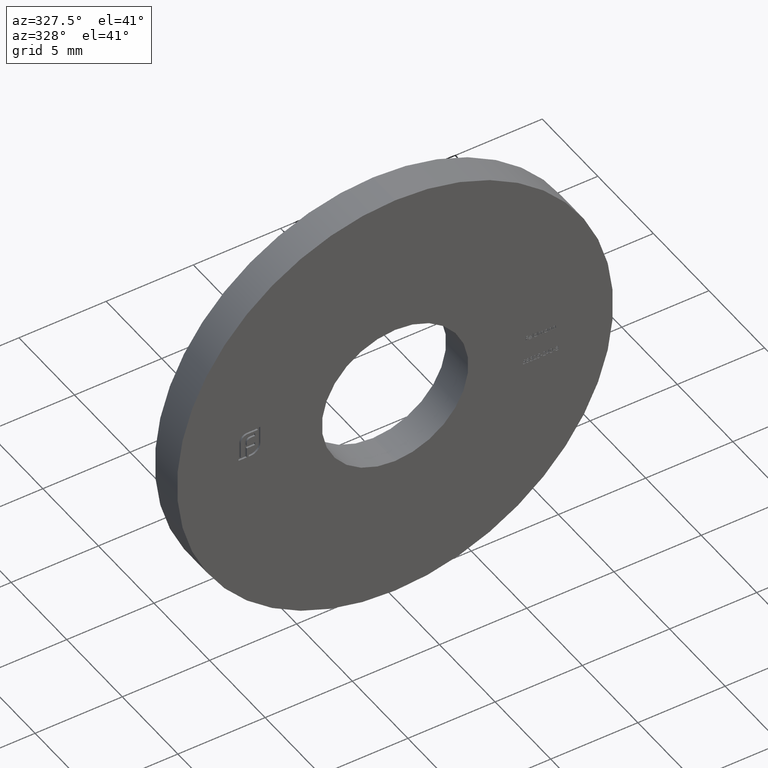
[diagram: clean part render]
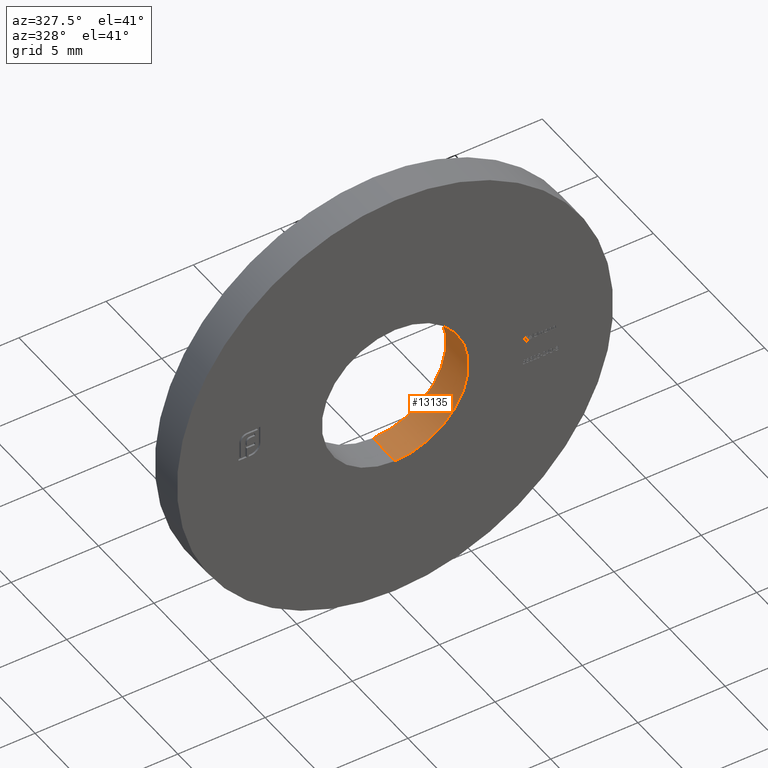
[diagram: same view with one face highlighted and labeled with its STEP entity id]
A machine part, auxiliary view. The second image highlights one B-rep face of the part: STEP entity #13135.
In plain terms, the highlighted cylindrical surface (partial cylindrical patch) has radius 4.2 mm, axis along (-0, -1, -0).
Its self-contained STEP definition (entity closure, byte-faithful):
#54 = CARTESIAN_POINT ( 'NONE',  ( 5.143516556418883914E-16, -1.000000000000000000, 4.200000000000000178 ) ) ;
#488 = ORIENTED_EDGE ( 'NONE', *, *, #15136, .F. ) ;
#856 = LINE ( 'NONE', #11048, #1681 ) ;
#894 = VERTEX_POINT ( 'NONE', #54 ) ;
#967 = DIRECTION ( 'NONE',  ( -0.000000000000000000, -1.000000000000000000, -0.000000000000000000 ) ) ;
#1164 = DIRECTION ( 'NONE',  ( 0.000000000000000000, 1.000000000000000000, 0.000000000000000000 ) ) ;
#1681 = VECTOR ( 'NONE', #2986, 1000.000000000000000 ) ;
#1885 = CARTESIAN_POINT ( 'NONE',  ( 0.000000000000000000, 1.000000000000000000, -4.200000000000000178 ) ) ;
#2986 = DIRECTION ( 'NONE',  ( -0.000000000000000000, -1.000000000000000000, -0.000000000000000000 ) ) ;
#3096 = DIRECTION ( 'NONE',  ( 0.000000000000000000, 1.000000000000000000, 0.000000000000000000 ) ) ;
#4537 = EDGE_LOOP ( 'NONE', ( #488, #17055, #7758, #10371 ) ) ;
#5264 = EDGE_CURVE ( 'NONE', #894, #9280, #9752, .T. ) ;
#5536 = AXIS2_PLACEMENT_3D ( 'NONE', #13392, #1164, #15896 ) ;
#7758 = ORIENTED_EDGE ( 'NONE', *, *, #13928, .T. ) ;
#8333 = CARTESIAN_POINT ( 'NONE',  ( 0.000000000000000000, 1.000000000000000000, -4.200000000000000178 ) ) ;
#9226 = VECTOR ( 'NONE', #10159, 1000.000000000000000 ) ;
#9280 = VERTEX_POINT ( 'NONE', #14849 ) ;
#9676 = CYLINDRICAL_SURFACE ( 'NONE', #16627, 4.200000000000000178 ) ;
#9752 = CIRCLE ( 'NONE', #15743, 4.200000000000000178 ) ;
#9789 = CARTESIAN_POINT ( 'NONE',  ( 0.000000000000000000, -1.000000000000000000, 0.000000000000000000 ) ) ;
#10092 = LINE ( 'NONE', #1885, #9226 ) ;
#10159 = DIRECTION ( 'NONE',  ( -0.000000000000000000, -1.000000000000000000, -0.000000000000000000 ) ) ;
#10331 = DIRECTION ( 'NONE',  ( 0.000000000000000000, 0.000000000000000000, -1.000000000000000000 ) ) ;
#10371 = ORIENTED_EDGE ( 'NONE', *, *, #5264, .F. ) ;
#11048 = CARTESIAN_POINT ( 'NONE',  ( 5.143516556418883914E-16, 1.000000000000000000, 4.200000000000000178 ) ) ;
#11159 = CIRCLE ( 'NONE', #5536, 4.200000000000000178 ) ;
#11625 = CARTESIAN_POINT ( 'NONE',  ( 5.143516556418883914E-16, 1.000000000000000000, 4.200000000000000178 ) ) ;
#12424 = FACE_OUTER_BOUND ( 'NONE', #4537, .T. ) ;
#13135 = ADVANCED_FACE ( 'NONE', ( #12424 ), #9676, .F. ) ;
#13243 = EDGE_CURVE ( 'NONE', #13977, #16012, #11159, .T. ) ;
#13392 = CARTESIAN_POINT ( 'NONE',  ( 0.000000000000000000, 1.000000000000000000, 0.000000000000000000 ) ) ;
#13832 = DIRECTION ( 'NONE',  ( 0.000000000000000000, 0.000000000000000000, 1.000000000000000000 ) ) ;
#13928 = EDGE_CURVE ( 'NONE', #16012, #9280, #10092, .T. ) ;
#13977 = VERTEX_POINT ( 'NONE', #11625 ) ;
#14849 = CARTESIAN_POINT ( 'NONE',  ( 0.000000000000000000, -1.000000000000000000, -4.200000000000000178 ) ) ;
#15136 = EDGE_CURVE ( 'NONE', #13977, #894, #856, .T. ) ;
#15743 = AXIS2_PLACEMENT_3D ( 'NONE', #9789, #3096, #13832 ) ;
#15896 = DIRECTION ( 'NONE',  ( 0.000000000000000000, 0.000000000000000000, 1.000000000000000000 ) ) ;
#16012 = VERTEX_POINT ( 'NONE', #8333 ) ;
#16627 = AXIS2_PLACEMENT_3D ( 'NONE', #16985, #967, #10331 ) ;
#16985 = CARTESIAN_POINT ( 'NONE',  ( 0.000000000000000000, 1.000000000000000000, 0.000000000000000000 ) ) ;
#17055 = ORIENTED_EDGE ( 'NONE', *, *, #13243, .T. ) ;